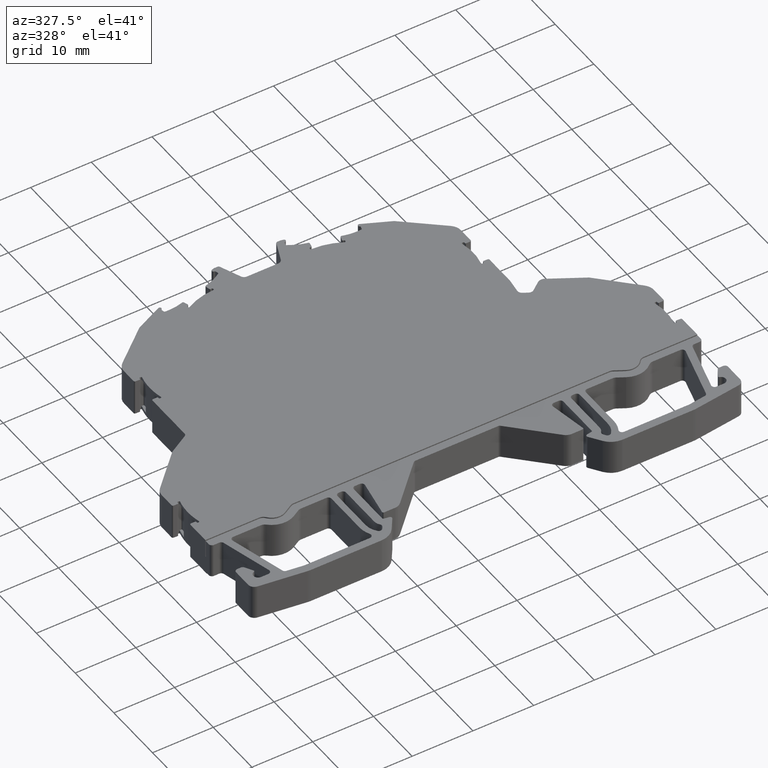
[diagram: clean part render]
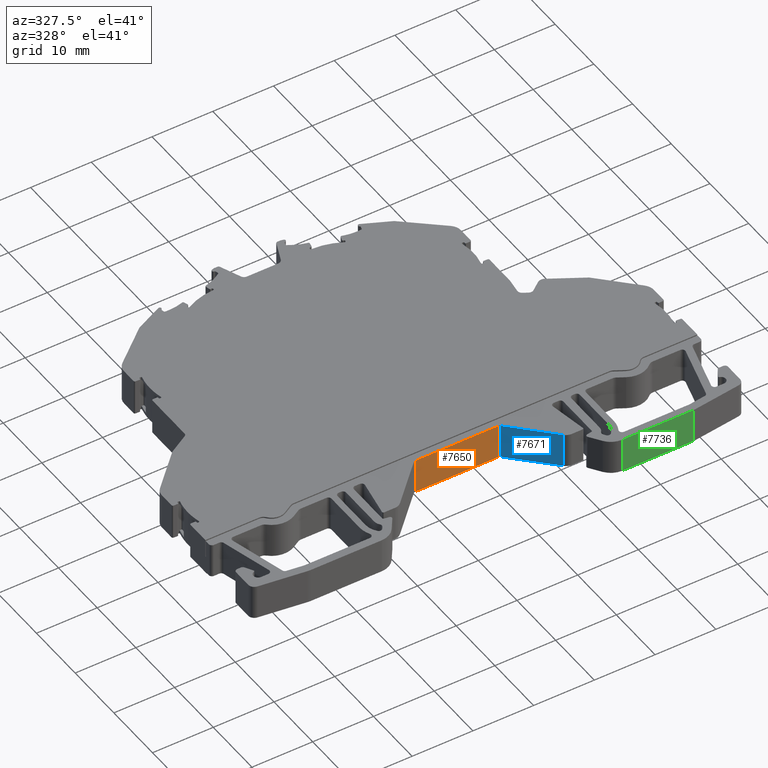
[diagram: same view with three faces highlighted in distinct colors, each labeled with its STEP entity id]
A machine part, auxiliary view with three faces highlighted in distinct colors.
Their STEP definitions:

[orange] entity #7650 — the highlighted planar face has unit normal (0, 1, 0).
#136 = EDGE_LOOP ( 'NONE', ( #6976, #6953, #6973, #6985 ) ) ;
#1939 = VERTEX_POINT ( 'NONE', #12854 ) ;
#1957 = VERTEX_POINT ( 'NONE', #12852 ) ;
#1962 = VERTEX_POINT ( 'NONE', #12849 ) ;
#1979 = VERTEX_POINT ( 'NONE', #12869 ) ;
#6953 = ORIENTED_EDGE ( 'NONE', *, *, #13813, .F. ) ;
#6973 = ORIENTED_EDGE ( 'NONE', *, *, #13838, .T. ) ;
#6976 = ORIENTED_EDGE ( 'NONE', *, *, #13815, .F. ) ;
#6985 = ORIENTED_EDGE ( 'NONE', *, *, #13809, .T. ) ;
#7650 = ADVANCED_FACE ( 'NONE', ( #16712 ), #16701, .F. ) ;
#9477 = VECTOR ( 'NONE', #10789, 1000.000000000000000 ) ;
#9532 = VECTOR ( 'NONE', #10755, 1000.000000000000000 ) ;
#9535 = VECTOR ( 'NONE', #10814, 1000.000000000000000 ) ;
#9565 = VECTOR ( 'NONE', #10859, 1000.000000000000000 ) ;
#10062 = AXIS2_PLACEMENT_3D ( 'NONE', #16719, #16717, #16735 ) ;
#10741 = LINE ( 'NONE', #10745, #9532 ) ;
#10745 = CARTESIAN_POINT ( 'NONE',  ( 479.4589839682539600, -344.5949917276120700, -54.50000000000000000 ) ) ;
#10755 = DIRECTION ( 'NONE',  ( 0.0000000000000000000, 0.0000000000000000000, -1.000000000000000000 ) ) ;
#10789 = DIRECTION ( 'NONE',  ( -1.000000000000000000, -1.630082009795367100E-014, 0.0000000000000000000 ) ) ;
#10795 = LINE ( 'NONE', #10798, #9535 ) ;
#10798 = CARTESIAN_POINT ( 'NONE',  ( 493.0806670241209400, -344.5949917276120700, -54.50000000000000000 ) ) ;
#10801 = LINE ( 'NONE', #10819, #9477 ) ;
#10814 = DIRECTION ( 'NONE',  ( 0.0000000000000000000, 0.0000000000000000000, -1.000000000000000000 ) ) ;
#10819 = CARTESIAN_POINT ( 'NONE',  ( 493.0806670241209400, -344.5949917276118400, -59.85000000000000100 ) ) ;
#10834 = CARTESIAN_POINT ( 'NONE',  ( 510.7578147152260600, -344.5949917276120700, -54.14999999999999900 ) ) ;
#10842 = LINE ( 'NONE', #10834, #9565 ) ;
#10859 = DIRECTION ( 'NONE',  ( -1.000000000000000000, 0.0000000000000000000, 0.0000000000000000000 ) ) ;
#12849 = CARTESIAN_POINT ( 'NONE',  ( 493.0806670241209400, -344.5949917276120700, -54.14999999999999900 ) ) ;
#12852 = CARTESIAN_POINT ( 'NONE',  ( 493.0806670241209400, -344.5949917276117300, -59.85000000000000100 ) ) ;
#12854 = CARTESIAN_POINT ( 'NONE',  ( 479.4589839682539600, -344.5949917276120700, -59.85000000000000100 ) ) ;
#12869 = CARTESIAN_POINT ( 'NONE',  ( 479.4589839682539600, -344.5949917276120700, -54.14999999999999900 ) ) ;
#13809 = EDGE_CURVE ( 'NONE', #1979, #1939, #10741, .T. ) ;
#13813 = EDGE_CURVE ( 'NONE', #1962, #1957, #10795, .T. ) ;
#13815 = EDGE_CURVE ( 'NONE', #1957, #1939, #10801, .T. ) ;
#13838 = EDGE_CURVE ( 'NONE', #1962, #1979, #10842, .T. ) ;
#16701 = PLANE ( 'NONE',  #10062 ) ;
#16712 = FACE_OUTER_BOUND ( 'NONE', #136, .T. ) ;
#16717 = DIRECTION ( 'NONE',  ( 0.0000000000000000000, 1.000000000000000000, 0.0000000000000000000 ) ) ;
#16719 = CARTESIAN_POINT ( 'NONE',  ( 493.0806670241209400, -344.5949917276120700, -54.50000000000000000 ) ) ;
#16735 = DIRECTION ( 'NONE',  ( 0.0000000000000000000, 0.0000000000000000000, 1.000000000000000000 ) ) ;

[blue] entity #7671 — the highlighted planar face has unit normal (0.7071, 0.7071, 0).
#135 = EDGE_LOOP ( 'NONE', ( #6945, #6949, #6931, #6950 ) ) ;
#2012 = VERTEX_POINT ( 'NONE', #11139 ) ;
#2830 = VERTEX_POINT ( 'NONE', #4138 ) ;
#2837 = VERTEX_POINT ( 'NONE', #4102 ) ;
#2846 = VERTEX_POINT ( 'NONE', #4107 ) ;
#4102 = CARTESIAN_POINT ( 'NONE',  ( 493.4342202620940200, -344.7414381843980200, -54.14999999999999900 ) ) ;
#4107 = CARTESIAN_POINT ( 'NONE',  ( 499.7402641843579500, -351.0474766623120200, -54.14999999999999900 ) ) ;
#4138 = CARTESIAN_POINT ( 'NONE',  ( 493.4342202620940200, -344.7414381843980200, -59.85000000000000100 ) ) ;
#6931 = ORIENTED_EDGE ( 'NONE', *, *, #13792, .T. ) ;
#6945 = ORIENTED_EDGE ( 'NONE', *, *, #13789, .F. ) ;
#6949 = ORIENTED_EDGE ( 'NONE', *, *, #13823, .F. ) ;
#6950 = ORIENTED_EDGE ( 'NONE', *, *, #13814, .T. ) ;
#7671 = ADVANCED_FACE ( 'NONE', ( #16779 ), #16786, .F. ) ;
#9506 = VECTOR ( 'NONE', #10735, 1000.000000000000100 ) ;
#9521 = VECTOR ( 'NONE', #10772, 1000.000000000000000 ) ;
#9540 = VECTOR ( 'NONE', #10781, 1000.000000000000000 ) ;
#9584 = VECTOR ( 'NONE', #10817, 1000.000000000000000 ) ;
#10724 = LINE ( 'NONE', #10761, #9506 ) ;
#10735 = DIRECTION ( 'NONE',  ( -0.7071070864284503300, 0.7071064759445128100, 0.0000000000000000000 ) ) ;
#10746 = CARTESIAN_POINT ( 'NONE',  ( 486.8918633665848600, -338.1990869372606300, -54.14999999999999900 ) ) ;
#10751 = LINE ( 'NONE', #10746, #9521 ) ;
#10761 = CARTESIAN_POINT ( 'NONE',  ( 499.7402641843580100, -351.0474766623119600, -59.85000000000000100 ) ) ;
#10764 = LINE ( 'NONE', #10818, #9540 ) ;
#10772 = DIRECTION ( 'NONE',  ( -0.7071070864284441100, 0.7071064759445191400, 0.0000000000000000000 ) ) ;
#10781 = DIRECTION ( 'NONE',  ( 0.0000000000000000000, 0.0000000000000000000, -1.000000000000000000 ) ) ;
#10812 = LINE ( 'NONE', #10813, #9584 ) ;
#10813 = CARTESIAN_POINT ( 'NONE',  ( 499.7402641843579500, -351.0474766623120200, -54.50000000000000000 ) ) ;
#10817 = DIRECTION ( 'NONE',  ( 0.0000000000000000000, 0.0000000000000000000, -1.000000000000000000 ) ) ;
#10818 = CARTESIAN_POINT ( 'NONE',  ( 493.4342202620940200, -344.7414381843980200, -54.50000000000000000 ) ) ;
#11139 = CARTESIAN_POINT ( 'NONE',  ( 499.7402641843580100, -351.0474766623119600, -59.85000000000000100 ) ) ;
#12888 = AXIS2_PLACEMENT_3D ( 'NONE', #16777, #16778, #16772 ) ;
#13789 = EDGE_CURVE ( 'NONE', #2012, #2830, #10724, .T. ) ;
#13792 = EDGE_CURVE ( 'NONE', #2846, #2837, #10751, .T. ) ;
#13814 = EDGE_CURVE ( 'NONE', #2837, #2830, #10764, .T. ) ;
#13823 = EDGE_CURVE ( 'NONE', #2846, #2012, #10812, .T. ) ;
#16772 = DIRECTION ( 'NONE',  ( -0.7071070864284441100, 0.7071064759445192500, 0.0000000000000000000 ) ) ;
#16777 = CARTESIAN_POINT ( 'NONE',  ( 499.7402641843579500, -351.0474766623120200, -54.50000000000000000 ) ) ;
#16778 = DIRECTION ( 'NONE',  ( 0.7071064759445192500, 0.7071070864284441100, 0.0000000000000000000 ) ) ;
#16779 = FACE_OUTER_BOUND ( 'NONE', #135, .T. ) ;
#16786 = PLANE ( 'NONE',  #12888 ) ;

[green] entity #7736 — the highlighted planar face has unit normal (0, 1, 0).
#142 = EDGE_LOOP ( 'NONE', ( #7021, #6999, #7035, #6966 ) ) ;
#1973 = VERTEX_POINT ( 'NONE', #12861 ) ;
#1981 = VERTEX_POINT ( 'NONE', #12858 ) ;
#1997 = VERTEX_POINT ( 'NONE', #12866 ) ;
#2002 = VERTEX_POINT ( 'NONE', #12874 ) ;
#6966 = ORIENTED_EDGE ( 'NONE', *, *, #13901, .T. ) ;
#6999 = ORIENTED_EDGE ( 'NONE', *, *, #13897, .F. ) ;
#7021 = ORIENTED_EDGE ( 'NONE', *, *, #13914, .F. ) ;
#7035 = ORIENTED_EDGE ( 'NONE', *, *, #13890, .T. ) ;
#7736 = ADVANCED_FACE ( 'NONE', ( #16662 ), #16527, .F. ) ;
#9616 = VECTOR ( 'NONE', #11010, 1000.000000000000000 ) ;
#9643 = VECTOR ( 'NONE', #10985, 1000.000000000000000 ) ;
#9645 = VECTOR ( 'NONE', #10973, 1000.000000000000000 ) ;
#9667 = VECTOR ( 'NONE', #10941, 1000.000000000000000 ) ;
#10914 = LINE ( 'NONE', #10918, #9667 ) ;
#10918 = CARTESIAN_POINT ( 'NONE',  ( 510.7578147152260600, -356.2950035174105200, -54.14999999999999900 ) ) ;
#10941 = DIRECTION ( 'NONE',  ( -1.000000000000000000, 0.0000000000000000000, 0.0000000000000000000 ) ) ;
#10964 = CARTESIAN_POINT ( 'NONE',  ( 506.0883007526831000, -356.2950035174105200, -54.50000000000000000 ) ) ;
#10965 = CARTESIAN_POINT ( 'NONE',  ( 517.7406018156849500, -356.2950035174105200, -54.50000000000000000 ) ) ;
#10973 = DIRECTION ( 'NONE',  ( 0.0000000000000000000, 0.0000000000000000000, -1.000000000000000000 ) ) ;
#10977 = LINE ( 'NONE', #10964, #9643 ) ;
#10985 = DIRECTION ( 'NONE',  ( 0.0000000000000000000, 0.0000000000000000000, -1.000000000000000000 ) ) ;
#10999 = LINE ( 'NONE', #10965, #9645 ) ;
#11006 = LINE ( 'NONE', #11007, #9616 ) ;
#11007 = CARTESIAN_POINT ( 'NONE',  ( 517.7406018156849500, -356.2950035174106300, -59.85000000000000100 ) ) ;
#11010 = DIRECTION ( 'NONE',  ( -1.000000000000000000, 9.527929450349626600E-015, 0.0000000000000000000 ) ) ;
#11126 = AXIS2_PLACEMENT_3D ( 'NONE', #16714, #16824, #16856 ) ;
#12858 = CARTESIAN_POINT ( 'NONE',  ( 506.0883007526831000, -356.2950035174105200, -59.85000000000000100 ) ) ;
#12861 = CARTESIAN_POINT ( 'NONE',  ( 506.0883007526831000, -356.2950035174105200, -54.14999999999999900 ) ) ;
#12866 = CARTESIAN_POINT ( 'NONE',  ( 517.7406018156849500, -356.2950035174105200, -54.14999999999999900 ) ) ;
#12874 = CARTESIAN_POINT ( 'NONE',  ( 517.7406018156849500, -356.2950035174106900, -59.85000000000000100 ) ) ;
#13890 = EDGE_CURVE ( 'NONE', #1997, #1973, #10914, .T. ) ;
#13897 = EDGE_CURVE ( 'NONE', #1997, #2002, #10999, .T. ) ;
#13901 = EDGE_CURVE ( 'NONE', #1973, #1981, #10977, .T. ) ;
#13914 = EDGE_CURVE ( 'NONE', #2002, #1981, #11006, .T. ) ;
#16527 = PLANE ( 'NONE',  #11126 ) ;
#16662 = FACE_OUTER_BOUND ( 'NONE', #142, .T. ) ;
#16714 = CARTESIAN_POINT ( 'NONE',  ( 517.7406018156849500, -356.2950035174105200, -54.50000000000000000 ) ) ;
#16824 = DIRECTION ( 'NONE',  ( 0.0000000000000000000, 1.000000000000000000, 0.0000000000000000000 ) ) ;
#16856 = DIRECTION ( 'NONE',  ( 0.0000000000000000000, 0.0000000000000000000, 1.000000000000000000 ) ) ;